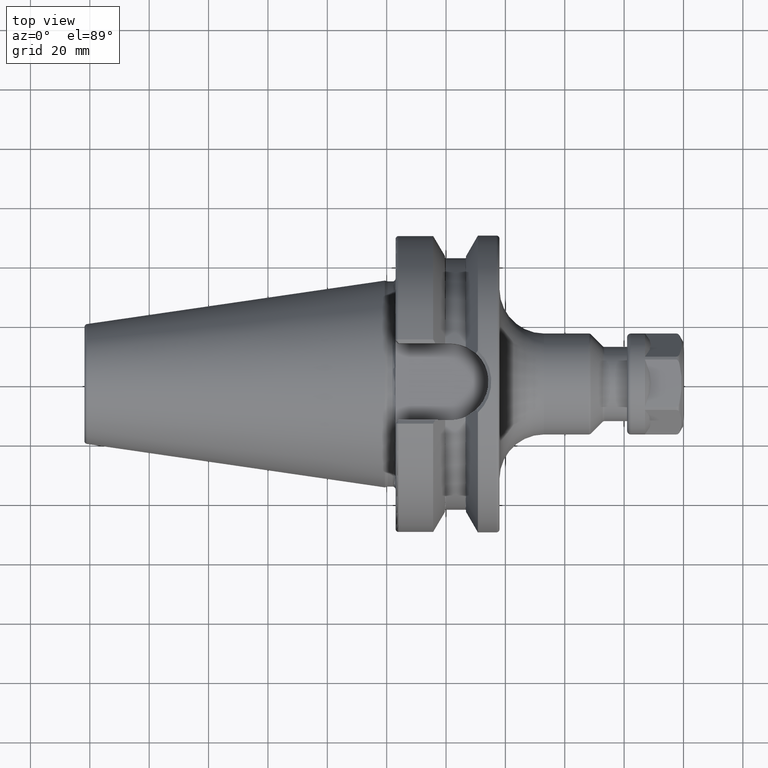
[diagram: clean part render]
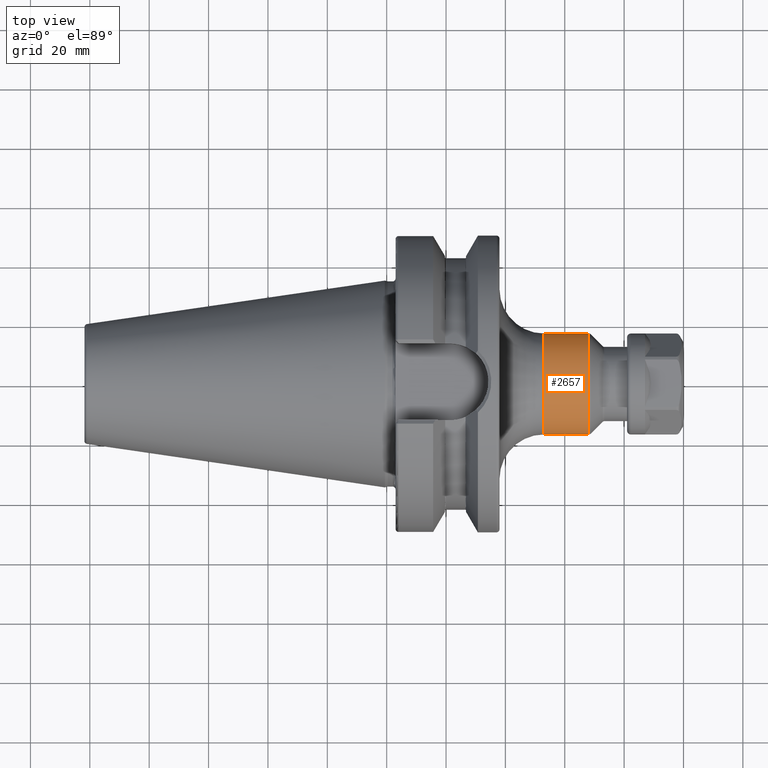
[diagram: same view with one face highlighted and labeled with its STEP entity id]
A machine part, top view. The second image highlights one B-rep face of the part: STEP entity #2657.
In plain terms, the highlighted cylindrical surface (partial cylindrical patch) has radius 17 mm, axis along (1, 0, 0).
Its self-contained STEP definition (entity closure, byte-faithful):
#854=CARTESIAN_POINT('',(6.808578643763E1,0.E0,0.E0));
#855=DIRECTION('',(-1.E0,0.E0,0.E0));
#856=DIRECTION('',(0.E0,-1.E0,0.E0));
#857=AXIS2_PLACEMENT_3D('',#854,#855,#856);
#859=CARTESIAN_POINT('',(5.3E1,0.E0,0.E0));
#860=DIRECTION('',(1.E0,0.E0,0.E0));
#861=DIRECTION('',(0.E0,1.E0,0.E0));
#862=AXIS2_PLACEMENT_3D('',#859,#860,#861);
#879=DIRECTION('',(-1.E0,0.E0,3.447675453011E-13));
#880=VECTOR('',#879,1.508578643763E1);
#881=CARTESIAN_POINT('',(6.808578643763E1,1.7E1,-3.689062828319E-12));
#882=LINE('',#881,#880);
#888=DIRECTION('',(-1.E0,0.E0,-3.448958737682E-13));
#889=VECTOR('',#888,1.508578643763E1);
#890=CARTESIAN_POINT('',(6.808578643763E1,-1.7E1,3.688528460091E-12));
#891=LINE('',#890,#889);
#1467=CARTESIAN_POINT('',(5.3E1,-1.7E1,0.E0));
#1468=CARTESIAN_POINT('',(5.3E1,1.7E1,0.E0));
#1469=VERTEX_POINT('',#1467);
#1470=VERTEX_POINT('',#1468);
#1479=CARTESIAN_POINT('',(6.808578643763E1,1.7E1,0.E0));
#1480=CARTESIAN_POINT('',(6.808578643763E1,-1.7E1,0.E0));
#1481=VERTEX_POINT('',#1479);
#1482=VERTEX_POINT('',#1480);
#2643=CARTESIAN_POINT('',(3.5475E1,0.E0,0.E0));
#2644=DIRECTION('',(1.E0,0.E0,0.E0));
#2645=DIRECTION('',(0.E0,-1.E0,0.E0));
#2646=AXIS2_PLACEMENT_3D('',#2643,#2644,#2645);
#2647=CYLINDRICAL_SURFACE('',#2646,1.7E1);
#2649=ORIENTED_EDGE('',*,*,#2648,.F.);
#2651=ORIENTED_EDGE('',*,*,#2650,.T.);
#2652=ORIENTED_EDGE('',*,*,#2637,.F.);
#2654=ORIENTED_EDGE('',*,*,#2653,.F.);
#2655=EDGE_LOOP('',(#2649,#2651,#2652,#2654));
#2656=FACE_OUTER_BOUND('',#2655,.F.);
#2657=ADVANCED_FACE('',(#2656),#2647,.T.);
#858=CIRCLE('',#857,1.7E1);
#863=CIRCLE('',#862,1.7E1);
#2637=EDGE_CURVE('',#1470,#1469,#863,.T.);
#2648=EDGE_CURVE('',#1482,#1481,#858,.T.);
#2650=EDGE_CURVE('',#1482,#1469,#891,.T.);
#2653=EDGE_CURVE('',#1481,#1470,#882,.T.);